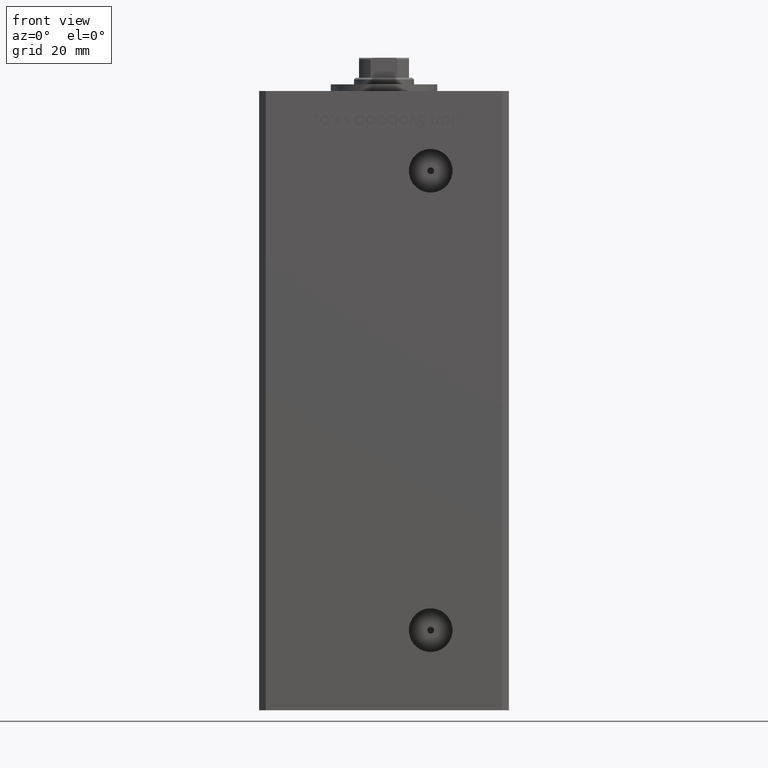
[diagram: clean part render]
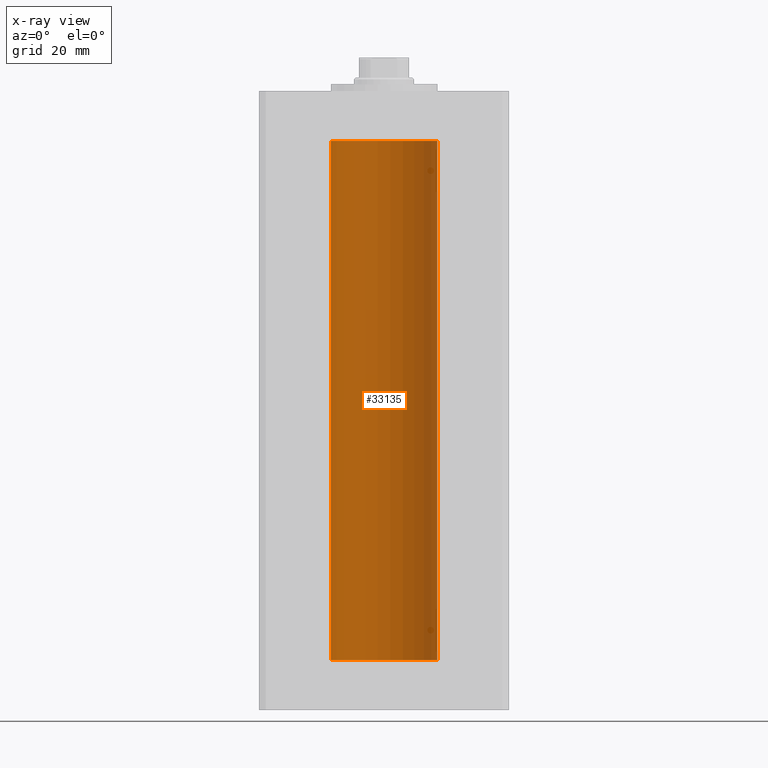
[diagram: x-ray — body ghosted, one internal face saturated and labeled with its STEP entity id]
A machine part, front view, then the same camera in x-ray: the body is ghosted and one INTERNAL B-rep face — a face not visible from any outside direction — is saturated and labeled: STEP entity #33135.
In plain terms, the highlighted cylindrical surface (partial cylindrical patch) has radius 16 mm, axis along (-0, -0, -1).
Its self-contained STEP definition (entity closure, byte-faithful):
#166 = CARTESIAN_POINT ( 'NONE',  ( 0.000000000000000000, 0.000000000000000000, 156.0000000000000000 ) ) ;
#687 = DIRECTION ( 'NONE',  ( -0.000000000000000000, -0.000000000000000000, -1.000000000000000000 ) ) ;
#1476 = AXIS2_PLACEMENT_3D ( 'NONE', #45146, #21151, #40146 ) ;
#3353 = CARTESIAN_POINT ( 'NONE',  ( 16.00000000000000000, 1.959434878635765131E-15, 0.000000000000000000 ) ) ;
#4106 = DIRECTION ( 'NONE',  ( 1.000000000000000000, 0.000000000000000000, 0.000000000000000000 ) ) ;
#4223 = EDGE_CURVE ( 'NONE', #21069, #49592, #19989, .T. ) ;
#12763 = VERTEX_POINT ( 'NONE', #13485 ) ;
#13485 = CARTESIAN_POINT ( 'NONE',  ( 16.00000000000000000, 1.959434878635765131E-15, 156.0000000000000000 ) ) ;
#14145 = DIRECTION ( 'NONE',  ( -0.000000000000000000, -0.000000000000000000, -1.000000000000000000 ) ) ;
#14760 = ORIENTED_EDGE ( 'NONE', *, *, #28518, .T. ) ;
#15466 = CARTESIAN_POINT ( 'NONE',  ( 0.000000000000000000, 0.000000000000000000, 156.0000000000000000 ) ) ;
#16797 = CARTESIAN_POINT ( 'NONE',  ( -16.00000000000000000, 0.000000000000000000, 156.0000000000000000 ) ) ;
#18489 = EDGE_CURVE ( 'NONE', #12763, #21069, #24752, .T. ) ;
#18868 = AXIS2_PLACEMENT_3D ( 'NONE', #15466, #43688, #4106 ) ;
#19989 = CIRCLE ( 'NONE', #1476, 16.00000000000000000 ) ;
#20225 = FACE_OUTER_BOUND ( 'NONE', #34760, .T. ) ;
#20276 = ORIENTED_EDGE ( 'NONE', *, *, #4223, .F. ) ;
#21069 = VERTEX_POINT ( 'NONE', #3353 ) ;
#21151 = DIRECTION ( 'NONE',  ( -0.000000000000000000, 0.000000000000000000, 1.000000000000000000 ) ) ;
#21760 = AXIS2_PLACEMENT_3D ( 'NONE', #166, #687, #41067 ) ;
#24483 = CARTESIAN_POINT ( 'NONE',  ( 16.00000000000000000, 1.959434878635765131E-15, 156.0000000000000000 ) ) ;
#24752 = LINE ( 'NONE', #24483, #38848 ) ;
#28142 = LINE ( 'NONE', #16797, #50396 ) ;
#28518 = EDGE_CURVE ( 'NONE', #12763, #37155, #34050, .T. ) ;
#33135 = ADVANCED_FACE ( 'NONE', ( #20225 ), #36313, .F. ) ;
#34050 = CIRCLE ( 'NONE', #18868, 16.00000000000000000 ) ;
#34760 = EDGE_LOOP ( 'NONE', ( #38422, #14760, #47074, #20276 ) ) ;
#36313 = CYLINDRICAL_SURFACE ( 'NONE', #21760, 16.00000000000000000 ) ;
#36534 = CARTESIAN_POINT ( 'NONE',  ( -16.00000000000000000, 0.000000000000000000, 156.0000000000000000 ) ) ;
#36893 = EDGE_CURVE ( 'NONE', #37155, #49592, #28142, .T. ) ;
#37155 = VERTEX_POINT ( 'NONE', #36534 ) ;
#38422 = ORIENTED_EDGE ( 'NONE', *, *, #18489, .F. ) ;
#38848 = VECTOR ( 'NONE', #43999, 1000.000000000000000 ) ;
#40146 = DIRECTION ( 'NONE',  ( 1.000000000000000000, 0.000000000000000000, 0.000000000000000000 ) ) ;
#41067 = DIRECTION ( 'NONE',  ( -1.000000000000000000, 0.000000000000000000, 0.000000000000000000 ) ) ;
#43688 = DIRECTION ( 'NONE',  ( -0.000000000000000000, 0.000000000000000000, 1.000000000000000000 ) ) ;
#43999 = DIRECTION ( 'NONE',  ( -0.000000000000000000, -0.000000000000000000, -1.000000000000000000 ) ) ;
#45146 = CARTESIAN_POINT ( 'NONE',  ( 0.000000000000000000, 0.000000000000000000, 0.000000000000000000 ) ) ;
#45930 = CARTESIAN_POINT ( 'NONE',  ( -16.00000000000000000, 0.000000000000000000, 0.000000000000000000 ) ) ;
#47074 = ORIENTED_EDGE ( 'NONE', *, *, #36893, .T. ) ;
#49592 = VERTEX_POINT ( 'NONE', #45930 ) ;
#50396 = VECTOR ( 'NONE', #14145, 1000.000000000000000 ) ;